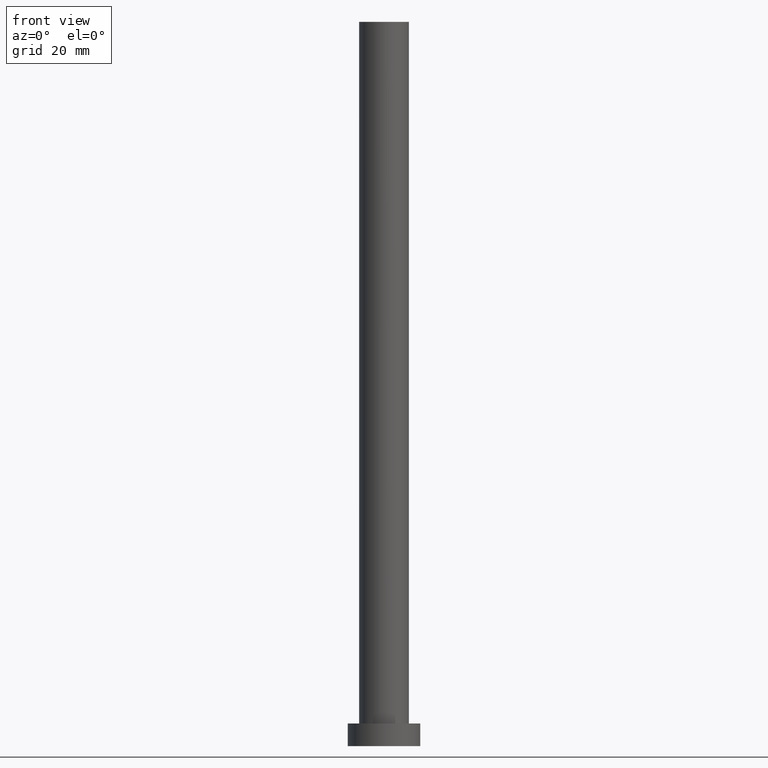
[diagram: clean part render]
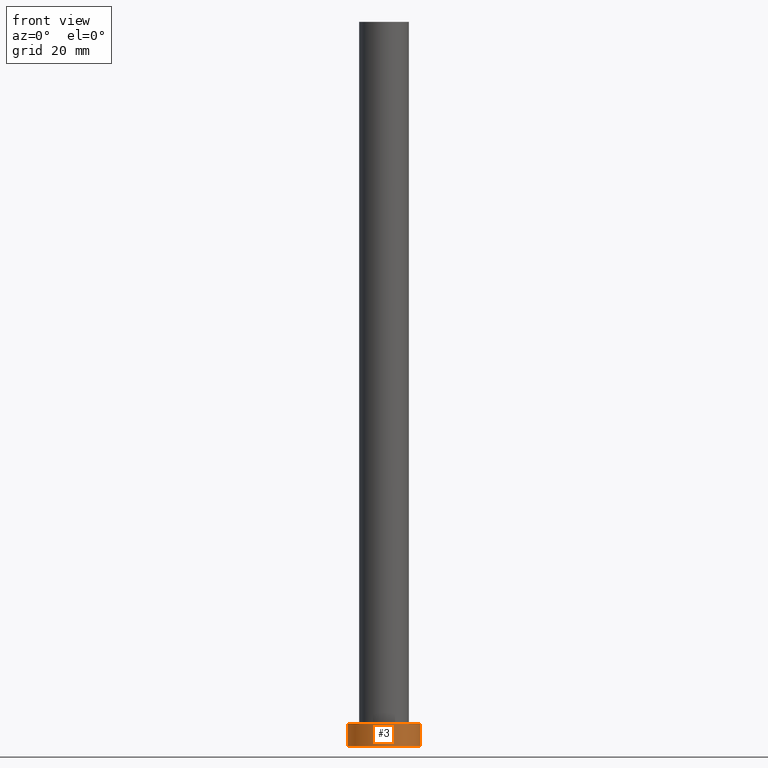
[diagram: same view with one face highlighted and labeled with its STEP entity id]
A machine part, front view. The second image highlights one B-rep face of the part: STEP entity #3.
In plain terms, the highlighted cylindrical surface (edge-blend (fillet) strip) has radius 8 mm, axis along (-0, -0, -1).
Its self-contained STEP definition (entity closure, byte-faithful):
#3 = ADVANCED_FACE ( 'NONE', ( #169 ), #88, .T. ) ;
#15 = VERTEX_POINT ( 'NONE', #219 ) ;
#16 = AXIS2_PLACEMENT_3D ( 'NONE', #72, #227, #76 ) ;
#23 = LINE ( 'NONE', #116, #147 ) ;
#46 = CIRCLE ( 'NONE', #222, 8.000000000000000000 ) ;
#55 = ORIENTED_EDGE ( 'NONE', *, *, #120, .T. ) ;
#63 = DIRECTION ( 'NONE',  ( 0.000000000000000000, 0.000000000000000000, 1.000000000000000000 ) ) ;
#72 = CARTESIAN_POINT ( 'NONE',  ( 0.000000000000000000, 0.000000000000000000, 5.000000000000000000 ) ) ;
#76 = DIRECTION ( 'NONE',  ( -1.000000000000000000, 0.000000000000000000, 0.000000000000000000 ) ) ;
#79 = DIRECTION ( 'NONE',  ( -0.000000000000000000, -0.000000000000000000, -1.000000000000000000 ) ) ;
#85 = LINE ( 'NONE', #161, #102 ) ;
#88 = CYLINDRICAL_SURFACE ( 'NONE', #16, 8.000000000000000000 ) ;
#97 = VERTEX_POINT ( 'NONE', #156 ) ;
#101 = EDGE_CURVE ( 'NONE', #97, #188, #145, .T. ) ;
#102 = VECTOR ( 'NONE', #205, 1000.000000000000000 ) ;
#116 = CARTESIAN_POINT ( 'NONE',  ( -8.000000000000000000, 0.000000000000000000, 5.000000000000000000 ) ) ;
#120 = EDGE_CURVE ( 'NONE', #97, #15, #23, .T. ) ;
#133 = AXIS2_PLACEMENT_3D ( 'NONE', #238, #218, #201 ) ;
#137 = EDGE_CURVE ( 'NONE', #15, #250, #46, .T. ) ;
#145 = CIRCLE ( 'NONE', #133, 8.000000000000000000 ) ;
#147 = VECTOR ( 'NONE', #79, 1000.000000000000000 ) ;
#150 = ORIENTED_EDGE ( 'NONE', *, *, #236, .F. ) ;
#156 = CARTESIAN_POINT ( 'NONE',  ( -8.000000000000000000, 0.000000000000000000, 5.000000000000000000 ) ) ;
#161 = CARTESIAN_POINT ( 'NONE',  ( 8.000000000000000000, 9.797174393178825657E-16, 5.000000000000000000 ) ) ;
#169 = FACE_OUTER_BOUND ( 'NONE', #170, .T. ) ;
#170 = EDGE_LOOP ( 'NONE', ( #150, #229, #55, #211 ) ) ;
#181 = CARTESIAN_POINT ( 'NONE',  ( 0.000000000000000000, 0.000000000000000000, 0.000000000000000000 ) ) ;
#186 = CARTESIAN_POINT ( 'NONE',  ( 8.000000000000000000, 9.797174393178825657E-16, 0.000000000000000000 ) ) ;
#188 = VERTEX_POINT ( 'NONE', #221 ) ;
#201 = DIRECTION ( 'NONE',  ( 1.000000000000000000, 0.000000000000000000, 0.000000000000000000 ) ) ;
#205 = DIRECTION ( 'NONE',  ( -0.000000000000000000, -0.000000000000000000, -1.000000000000000000 ) ) ;
#211 = ORIENTED_EDGE ( 'NONE', *, *, #137, .T. ) ;
#218 = DIRECTION ( 'NONE',  ( 0.000000000000000000, 0.000000000000000000, 1.000000000000000000 ) ) ;
#219 = CARTESIAN_POINT ( 'NONE',  ( -8.000000000000000000, 0.000000000000000000, 0.000000000000000000 ) ) ;
#221 = CARTESIAN_POINT ( 'NONE',  ( 8.000000000000000000, 9.797174393178825657E-16, 5.000000000000000000 ) ) ;
#222 = AXIS2_PLACEMENT_3D ( 'NONE', #181, #63, #240 ) ;
#227 = DIRECTION ( 'NONE',  ( -0.000000000000000000, -0.000000000000000000, -1.000000000000000000 ) ) ;
#229 = ORIENTED_EDGE ( 'NONE', *, *, #101, .F. ) ;
#236 = EDGE_CURVE ( 'NONE', #188, #250, #85, .T. ) ;
#238 = CARTESIAN_POINT ( 'NONE',  ( 0.000000000000000000, 0.000000000000000000, 5.000000000000000000 ) ) ;
#240 = DIRECTION ( 'NONE',  ( 1.000000000000000000, 0.000000000000000000, 0.000000000000000000 ) ) ;
#250 = VERTEX_POINT ( 'NONE', #186 ) ;